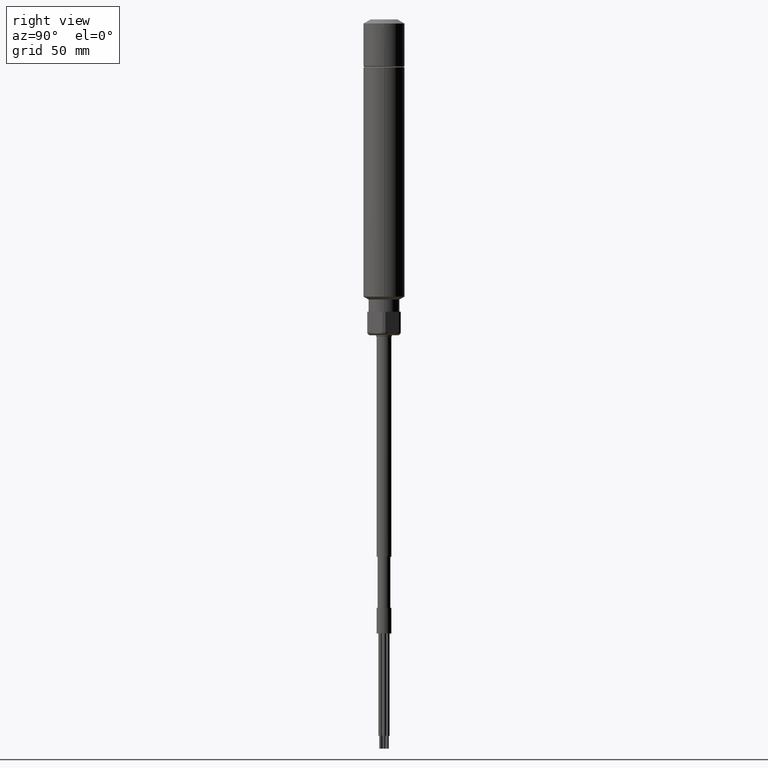
[diagram: clean part render]
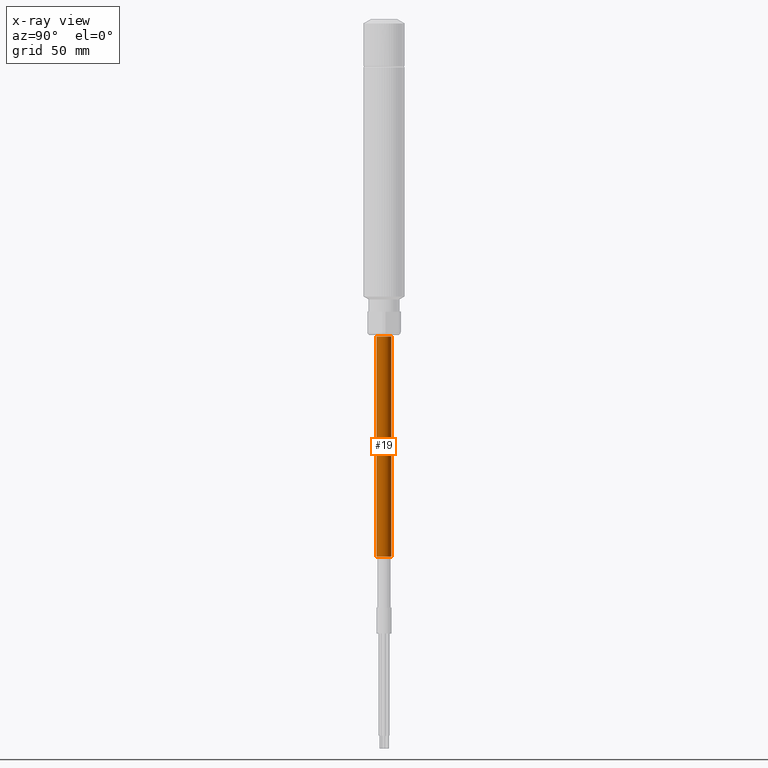
[diagram: x-ray — body ghosted, one internal face saturated and labeled with its STEP entity id]
A machine part, right view, then the same camera in x-ray: the body is ghosted and one INTERNAL B-rep face — a face not visible from any outside direction — is saturated and labeled: STEP entity #19.
In plain terms, the highlighted cylindrical surface (edge-blend (fillet) strip) has radius 2.9 mm, axis along (0, -0, 1).
Its self-contained STEP definition (entity closure, byte-faithful):
#19 = ADVANCED_FACE ( 'NONE', ( #4303 ), #2858, .T. ) ;
#190 = VERTEX_POINT ( 'NONE', #3634 ) ;
#288 = EDGE_CURVE ( 'NONE', #190, #4046, #3962, .T. ) ;
#339 = CARTESIAN_POINT ( 'NONE',  ( 0.000000000000000000, -0.1141732283490009131, 1.848688875811244081 ) ) ;
#356 = CARTESIAN_POINT ( 'NONE',  ( 1.398218786443653596E-17, 0.1141732283464557823, -7.419907607309842668 ) ) ;
#669 = ORIENTED_EDGE ( 'NONE', *, *, #2984, .T. ) ;
#752 = DIRECTION ( 'NONE',  ( 0.000000000000000000, -1.000000000000000000, 0.000000000000000000 ) ) ;
#872 = DIRECTION ( 'NONE',  ( 0.000000000000000000, -1.909564484815120167E-19, 1.000000000000000000 ) ) ;
#1128 = VERTEX_POINT ( 'NONE', #6465 ) ;
#1509 = EDGE_LOOP ( 'NONE', ( #6037, #669, #2142, #5029 ) ) ;
#1568 = VECTOR ( 'NONE', #872, 39.37007874015748143 ) ;
#1710 = DIRECTION ( 'NONE',  ( 0.000000000000000000, -1.909564484815120167E-19, 1.000000000000000000 ) ) ;
#2142 = ORIENTED_EDGE ( 'NONE', *, *, #288, .F. ) ;
#2675 = CARTESIAN_POINT ( 'NONE',  ( 0.000000000000000000, -1.272559856369850413E-12, -4.033464566928685713 ) ) ;
#2858 = CYLINDRICAL_SURFACE ( 'NONE', #4420, 0.1141732283477283477 ) ;
#2974 = EDGE_CURVE ( 'NONE', #1128, #190, #4376, .T. ) ;
#2984 = EDGE_CURVE ( 'NONE', #5232, #4046, #5353, .T. ) ;
#3258 = DIRECTION ( 'NONE',  ( 0.000000000000000000, -1.000000000000000000, 0.000000000000000000 ) ) ;
#3566 = CIRCLE ( 'NONE', #4393, 0.1141732283477283477 ) ;
#3634 = CARTESIAN_POINT ( 'NONE',  ( 0.000000000000000000, -0.1141732283490009131, -4.033464566928685713 ) ) ;
#3785 = CARTESIAN_POINT ( 'NONE',  ( 0.000000000000000000, -1.272560979604980244E-12, 1.848688875811244081 ) ) ;
#3962 = CIRCLE ( 'NONE', #5020, 0.1141732283477283477 ) ;
#4046 = VERTEX_POINT ( 'NONE', #4321 ) ;
#4271 = DIRECTION ( 'NONE',  ( 0.000000000000000000, -1.909564484815120167E-19, 1.000000000000000000 ) ) ;
#4303 = FACE_OUTER_BOUND ( 'NONE', #1509, .T. ) ;
#4321 = CARTESIAN_POINT ( 'NONE',  ( 1.398218786443653596E-17, 0.1141732283464557823, -4.033464566928685713 ) ) ;
#4376 = LINE ( 'NONE', #339, #5057 ) ;
#4393 = AXIS2_PLACEMENT_3D ( 'NONE', #6253, #1710, #752 ) ;
#4420 = AXIS2_PLACEMENT_3D ( 'NONE', #3785, #4271, #3258 ) ;
#4656 = DIRECTION ( 'NONE',  ( 0.000000000000000000, -1.000000000000000000, 0.000000000000000000 ) ) ;
#4946 = CARTESIAN_POINT ( 'NONE',  ( 1.398218786443653596E-17, 0.1141732283464557823, 1.848688875811244081 ) ) ;
#5020 = AXIS2_PLACEMENT_3D ( 'NONE', #2675, #5254, #4656 ) ;
#5029 = ORIENTED_EDGE ( 'NONE', *, *, #2974, .F. ) ;
#5057 = VECTOR ( 'NONE', #5417, 39.37007874015748143 ) ;
#5232 = VERTEX_POINT ( 'NONE', #356 ) ;
#5254 = DIRECTION ( 'NONE',  ( 0.000000000000000000, -1.909564484815120167E-19, 1.000000000000000000 ) ) ;
#5353 = LINE ( 'NONE', #4946, #1568 ) ;
#5415 = EDGE_CURVE ( 'NONE', #1128, #5232, #3566, .T. ) ;
#5417 = DIRECTION ( 'NONE',  ( 0.000000000000000000, -1.909564484815120167E-19, 1.000000000000000000 ) ) ;
#6037 = ORIENTED_EDGE ( 'NONE', *, *, #5415, .T. ) ;
#6253 = CARTESIAN_POINT ( 'NONE',  ( 0.000000000000000000, -1.272559209706714804E-12, -7.419907607309842668 ) ) ;
#6465 = CARTESIAN_POINT ( 'NONE',  ( 0.000000000000000000, -0.1141732283490009131, -7.419907607309842668 ) ) ;